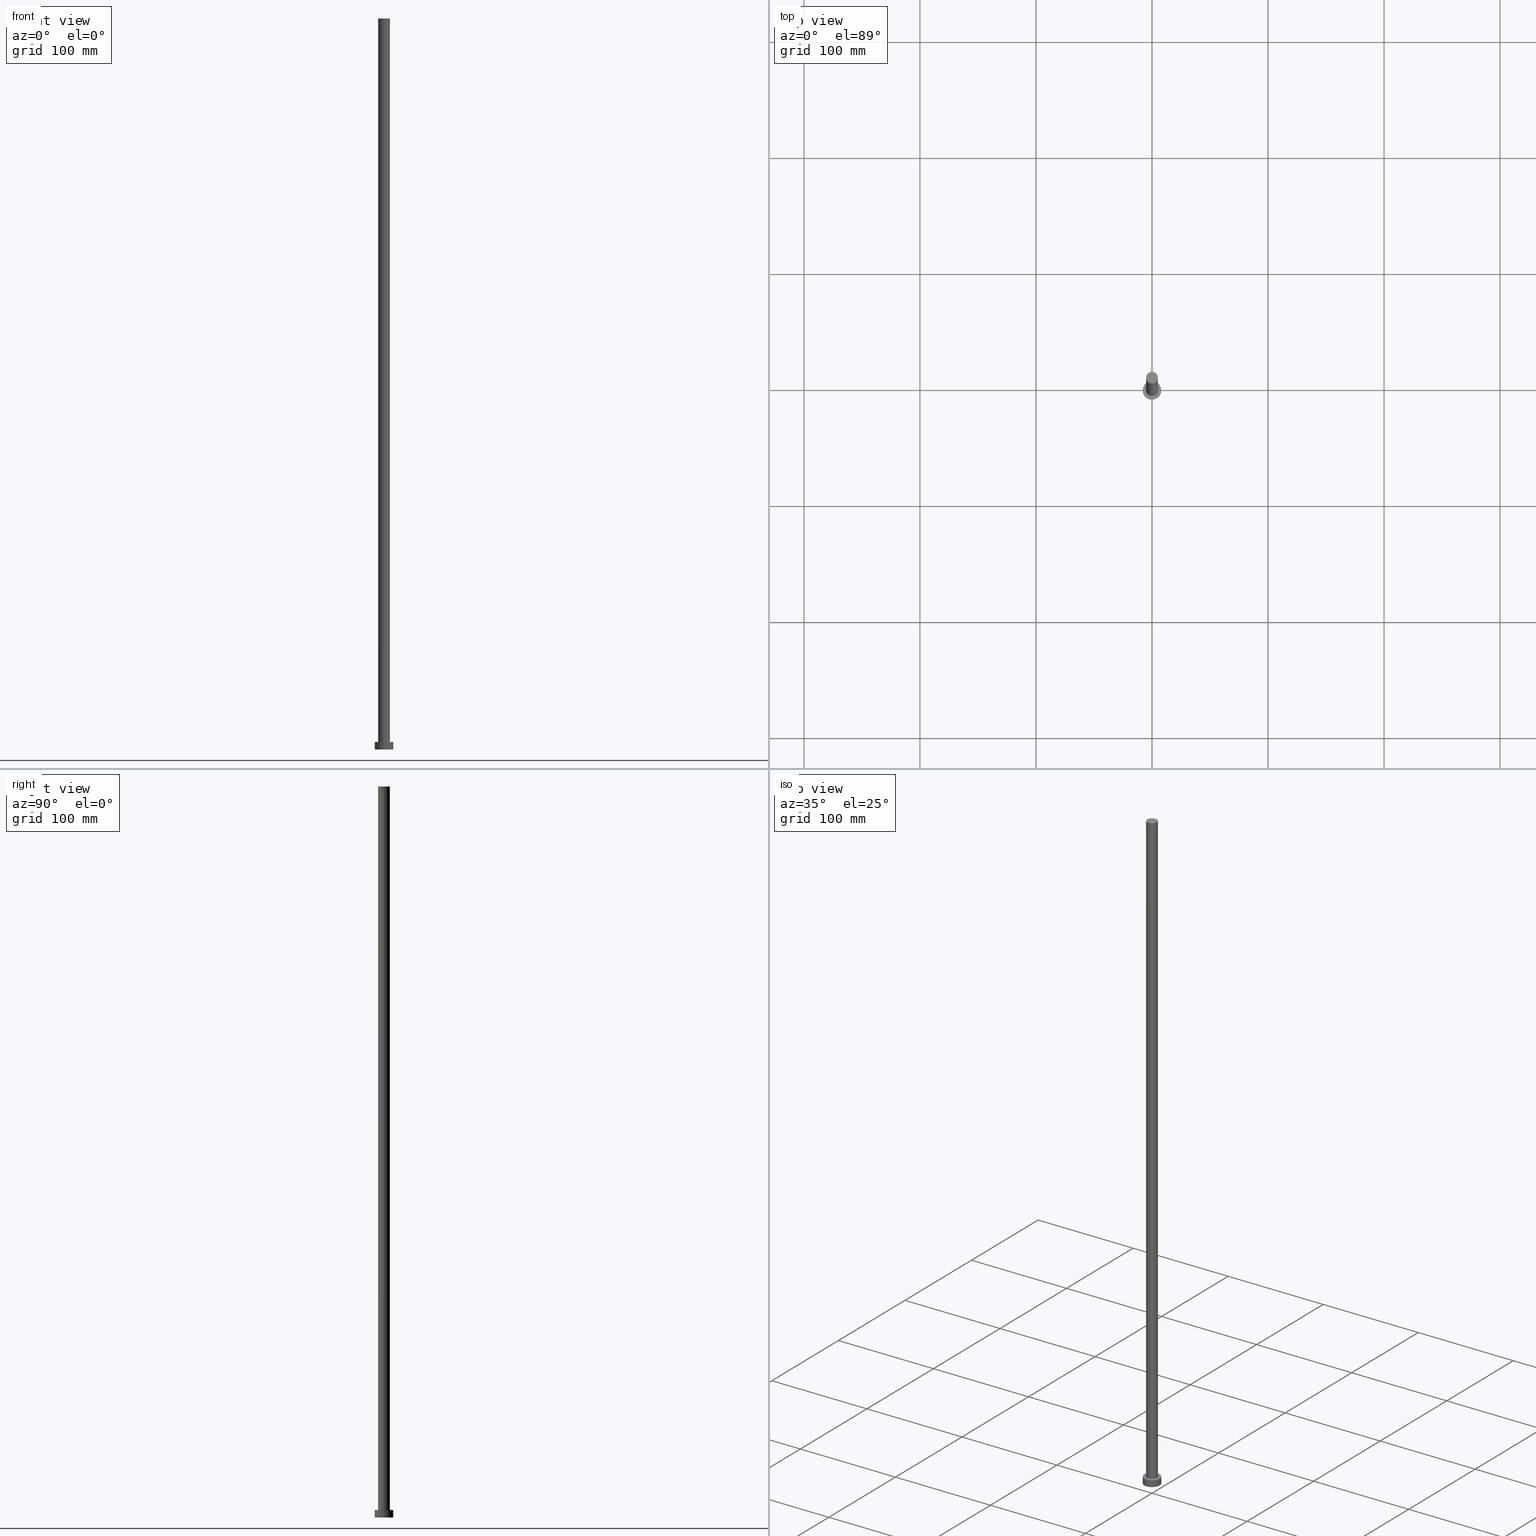
[diagram: canonical four-view strip — front | top / right | iso, engineering-drawing reading convention]
A machine part, canonical four-view strip (front | top / right | iso — engineering-drawing reading convention). The complete STEP part file that produces these views, byte-faithful:
ISO-10303-21;
HEADER;
FILE_DESCRIPTION (( 'STEP AP203' ),
    '1' );
FILE_NAME ('2b42.STEP',
    '2023-02-13T12:23:52',
    ( '' ),
    ( '' ),
    'SwSTEP 2.0',
    'SolidWorks 2019',
    '' );
FILE_SCHEMA (( 'CONFIG_CONTROL_DESIGN' ));
ENDSEC;

DATA;
#1 = AXIS2_PLACEMENT_3D ( 'NONE', #38, #131, #18 ) ;
#2 = CALENDAR_DATE ( 2023, 13, 2 ) ;
#3 = EDGE_CURVE ( 'NONE', #17, #167, #249, .T. ) ;
#4 = PRODUCT ( '2b42', '2b42', '', ( #243 ) ) ;
#5 = COORDINATED_UNIVERSAL_TIME_OFFSET ( 1, 0, .AHEAD. ) ;
#6 = DIRECTION ( 'NONE',  ( -0.000000000000000000, -0.000000000000000000, -1.000000000000000000 ) ) ;
#7 = PERSON_AND_ORGANIZATION ( #98, #213 ) ;
#8 =( NAMED_UNIT ( * ) PLANE_ANGLE_UNIT ( ) SI_UNIT ( $, .RADIAN. ) );
#9 = ORIENTED_EDGE ( 'NONE', *, *, #128, .T. ) ;
#10 = ORIENTED_EDGE ( 'NONE', *, *, #11, .F. ) ;
#11 = EDGE_CURVE ( 'NONE', #54, #133, #122, .T. ) ;
#12 = CARTESIAN_POINT ( 'NONE',  ( 0.000000000000000000, 0.000000000000000000, 630.0000000000000000 ) ) ;
#13 = ADVANCED_FACE ( 'NONE', ( #180 ), #158, .T. ) ;
#14 = AXIS2_PLACEMENT_3D ( 'NONE', #58, #205, #149 ) ;
#15 = PERSON_AND_ORGANIZATION ( #98, #213 ) ;
#16 = APPROVAL ( #39, 'NEUR�EN�' ) ;
#17 = VERTEX_POINT ( 'NONE', #42 ) ;
#18 = DIRECTION ( 'NONE',  ( 1.000000000000000000, 0.000000000000000000, 0.000000000000000000 ) ) ;
#19 = DATE_AND_TIME ( #43, #32 ) ;
#20 = DIRECTION ( 'NONE',  ( 1.000000000000000000, 0.000000000000000000, 0.000000000000000000 ) ) ;
#21 = LINE ( 'NONE', #121, #103 ) ;
#22 = CARTESIAN_POINT ( 'NONE',  ( -8.000000000000000000, 0.000000000000000000, 6.500000000000000000 ) ) ;
#23 = CARTESIAN_POINT ( 'NONE',  ( 0.000000000000000000, 0.000000000000000000, 630.0000000000000000 ) ) ;
#24 = PRODUCT_RELATED_PRODUCT_CATEGORY ( 'detail', '', ( #4 ) ) ;
#25 = APPROVAL_STATUS ( 'not_yet_approved' ) ;
#26 = SHAPE_DEFINITION_REPRESENTATION ( #141, #211 ) ;
#27 = PERSON_AND_ORGANIZATION ( #98, #213 ) ;
#28 = COORDINATED_UNIVERSAL_TIME_OFFSET ( 1, 0, .AHEAD. ) ;
#29 = ORIENTED_EDGE ( 'NONE', *, *, #96, .T. ) ;
#30 = DIRECTION ( 'NONE',  ( 0.000000000000000000, 0.000000000000000000, 1.000000000000000000 ) ) ;
#31 = ORIENTED_EDGE ( 'NONE', *, *, #105, .T. ) ;
#32 = LOCAL_TIME ( 13, 23, 52.00000000000000000, #41 ) ;
#33 = APPROVAL_DATE_TIME ( #177, #94 ) ;
#34 = ORIENTED_EDGE ( 'NONE', *, *, #72, .F. ) ;
#35 = ADVANCED_FACE ( 'NONE', ( #45 ), #221, .F. ) ;
#36 = CIRCLE ( 'NONE', #207, 8.000000000000000000 ) ;
#37 = EDGE_LOOP ( 'NONE', ( #63, #34 ) ) ;
#38 = CARTESIAN_POINT ( 'NONE',  ( 0.000000000000000000, 0.000000000000000000, 0.000000000000000000 ) ) ;
#39 = APPROVAL_STATUS ( 'not_yet_approved' ) ;
#40 = ORIENTED_EDGE ( 'NONE', *, *, #100, .T. ) ;
#41 = COORDINATED_UNIVERSAL_TIME_OFFSET ( 1, 0, .AHEAD. ) ;
#42 = CARTESIAN_POINT ( 'NONE',  ( 5.100000000000001421, 6.245698675651501825E-16, 630.0000000000000000 ) ) ;
#43 = CALENDAR_DATE ( 2023, 13, 2 ) ;
#44 = DIRECTION ( 'NONE',  ( 0.000000000000000000, 0.000000000000000000, 1.000000000000000000 ) ) ;
#45 = FACE_OUTER_BOUND ( 'NONE', #189, .T. ) ;
#46 = PRODUCT_DEFINITION ( 'NEZN�M�', '', #234, #65 ) ;
#47 = FACE_OUTER_BOUND ( 'NONE', #104, .T. ) ;
#48 = AXIS2_PLACEMENT_3D ( 'NONE', #198, #68, #20 ) ;
#49 = PLANE ( 'NONE',  #50 ) ;
#50 = AXIS2_PLACEMENT_3D ( 'NONE', #12, #172, #206 ) ;
#51 = ORIENTED_EDGE ( 'NONE', *, *, #56, .T. ) ;
#52 = CC_DESIGN_PERSON_AND_ORGANIZATION_ASSIGNMENT ( #92, #75, ( #46 ) ) ;
#53 = DIRECTION ( 'NONE',  ( -0.000000000000000000, -0.000000000000000000, -1.000000000000000000 ) ) ;
#54 = VERTEX_POINT ( 'NONE', #117 ) ;
#55 = LOCAL_TIME ( 13, 23, 52.00000000000000000, #240 ) ;
#56 = EDGE_CURVE ( 'NONE', #126, #167, #142, .T. ) ;
#57 = EDGE_LOOP ( 'NONE', ( #90, #152, #40, #231 ) ) ;
#58 = CARTESIAN_POINT ( 'NONE',  ( 0.000000000000000000, 0.000000000000000000, 630.0000000000000000 ) ) ;
#59 = DIRECTION ( 'NONE',  ( -0.000000000000000000, -0.000000000000000000, -1.000000000000000000 ) ) ;
#60 = APPROVAL_STATUS ( 'not_yet_approved' ) ;
#61 = DIRECTION ( 'NONE',  ( 0.000000000000000000, 0.000000000000000000, 1.000000000000000000 ) ) ;
#62 = ADVANCED_FACE ( 'NONE', ( #222 ), #161, .T. ) ;
#63 = ORIENTED_EDGE ( 'NONE', *, *, #56, .F. ) ;
#64 = ORIENTED_EDGE ( 'NONE', *, *, #228, .T. ) ;
#65 = DESIGN_CONTEXT ( 'detailed design', #112, 'design' ) ;
#66 = MANIFOLD_SOLID_BREP ( 'P�idat vysunut�m3', #157 ) ;
#67 = CC_DESIGN_PERSON_AND_ORGANIZATION_ASSIGNMENT ( #127, #79, ( #4 ) ) ;
#68 = DIRECTION ( 'NONE',  ( 0.000000000000000000, 0.000000000000000000, 1.000000000000000000 ) ) ;
#69 = PERSON_AND_ORGANIZATION ( #98, #213 ) ;
#70 = AXIS2_PLACEMENT_3D ( 'NONE', #255, #71, #201 ) ;
#71 = DIRECTION ( 'NONE',  ( 0.000000000000000000, 0.000000000000000000, 1.000000000000000000 ) ) ;
#72 = EDGE_CURVE ( 'NONE', #167, #126, #178, .T. ) ;
#73 = DIRECTION ( 'NONE',  ( 1.000000000000000000, 0.000000000000000000, 0.000000000000000000 ) ) ;
#74 = CARTESIAN_POINT ( 'NONE',  ( 0.000000000000000000, 0.000000000000000000, 6.500000000000000000 ) ) ;
#75 = PERSON_AND_ORGANIZATION_ROLE ( 'creator' ) ;
#76 = FACE_BOUND ( 'NONE', #37, .T. ) ;
#77 = ORIENTED_EDGE ( 'NONE', *, *, #254, .F. ) ;
#78 = EDGE_CURVE ( 'NONE', #156, #133, #120, .T. ) ;
#79 = PERSON_AND_ORGANIZATION_ROLE ( 'design_owner' ) ;
#80 = COORDINATED_UNIVERSAL_TIME_OFFSET ( 1, 0, .AHEAD. ) ;
#81 = AXIS2_PLACEMENT_3D ( 'NONE', #87, #165, #244 ) ;
#82 = CARTESIAN_POINT ( 'NONE',  ( 0.000000000000000000, 0.000000000000000000, 630.0000000000000000 ) ) ;
#83 = CC_DESIGN_APPROVAL ( #16, ( #234 ) ) ;
#84 = CARTESIAN_POINT ( 'NONE',  ( 0.000000000000000000, 0.000000000000000000, 6.500000000000000000 ) ) ;
#85 = DIRECTION ( 'NONE',  ( 1.000000000000000000, 0.000000000000000000, 0.000000000000000000 ) ) ;
#86 = VECTOR ( 'NONE', #53, 1000.000000000000000 ) ;
#87 = CARTESIAN_POINT ( 'NONE',  ( 0.000000000000000000, 0.000000000000000000, 0.000000000000000000 ) ) ;
#88 = EDGE_LOOP ( 'NONE', ( #197, #218, #232, #171 ) ) ;
#89 = APPROVAL_ROLE ( '' ) ;
#90 = ORIENTED_EDGE ( 'NONE', *, *, #105, .F. ) ;
#91 = CARTESIAN_POINT ( 'NONE',  ( 0.000000000000000000, 0.000000000000000000, 630.0000000000000000 ) ) ;
#92 = PERSON_AND_ORGANIZATION ( #98, #213 ) ;
#93 = AXIS2_PLACEMENT_3D ( 'NONE', #82, #61, #216 ) ;
#94 = APPROVAL ( #60, 'NEUR�EN�' ) ;
#95 = CARTESIAN_POINT ( 'NONE',  ( -5.100000000000001421, 0.000000000000000000, 630.0000000000000000 ) ) ;
#96 = EDGE_CURVE ( 'NONE', #214, #126, #21, .T. ) ;
#97 = CARTESIAN_POINT ( 'NONE',  ( 0.000000000000000000, 0.000000000000000000, 0.000000000000000000 ) ) ;
#98 = PERSON ( 'NEUR�EN�', 'NEUR�EN�', 'NEUR�EN�', ('NEUR�EN�'), ('NEUR�EN�'), ('NEUR�EN�') ) ;
#99 = DIRECTION ( 'NONE',  ( -0.000000000000000000, -0.000000000000000000, -1.000000000000000000 ) ) ;
#100 = EDGE_CURVE ( 'NONE', #133, #54, #136, .T. ) ;
#101 = FACE_OUTER_BOUND ( 'NONE', #179, .T. ) ;
#102 = VERTEX_POINT ( 'NONE', #22 ) ;
#103 = VECTOR ( 'NONE', #183, 1000.000000000000000 ) ;
#104 = EDGE_LOOP ( 'NONE', ( #107, #77, #29, #51 ) ) ;
#105 = EDGE_CURVE ( 'NONE', #156, #102, #36, .T. ) ;
#106 = DIRECTION ( 'NONE',  ( 1.000000000000000000, 0.000000000000000000, -0.000000000000000000 ) ) ;
#107 = ORIENTED_EDGE ( 'NONE', *, *, #3, .F. ) ;
#108 = CARTESIAN_POINT ( 'NONE',  ( -5.100000000000001421, 0.000000000000000000, 6.500000000000000000 ) ) ;
#109 = CARTESIAN_POINT ( 'NONE',  ( 0.000000000000000000, 0.000000000000000000, 6.500000000000000000 ) ) ;
#110 = ORIENTED_EDGE ( 'NONE', *, *, #215, .T. ) ;
#111 = AXIS2_PLACEMENT_3D ( 'NONE', #209, #30, #106 ) ;
#112 = APPLICATION_CONTEXT ( 'configuration controlled 3d designs of mechanical parts and assemblies' ) ;
#113 = SECURITY_CLASSIFICATION_LEVEL ( 'unclassified' ) ;
#114 = LOCAL_TIME ( 13, 23, 52.00000000000000000, #80 ) ;
#115 = CARTESIAN_POINT ( 'NONE',  ( 0.000000000000000000, 0.000000000000000000, 6.500000000000000000 ) ) ;
#116 = AXIS2_PLACEMENT_3D ( 'NONE', #250, #59, #217 ) ;
#117 = CARTESIAN_POINT ( 'NONE',  ( -8.000000000000000000, 0.000000000000000000, 0.000000000000000000 ) ) ;
#118 = CALENDAR_DATE ( 2023, 13, 2 ) ;
#119 = ADVANCED_FACE ( 'NONE', ( #47 ), #202, .T. ) ;
#120 = LINE ( 'NONE', #200, #220 ) ;
#121 = CARTESIAN_POINT ( 'NONE',  ( -5.100000000000001421, 0.000000000000000000, 630.0000000000000000 ) ) ;
#122 = CIRCLE ( 'NONE', #1, 8.000000000000000000 ) ;
#123 = CARTESIAN_POINT ( 'NONE',  ( -8.000000000000000000, 0.000000000000000000, 6.500000000000000000 ) ) ;
#124 = CARTESIAN_POINT ( 'NONE',  ( 8.000000000000000000, 9.797174393178823685E-16, 6.500000000000000000 ) ) ;
#125 = AXIS2_PLACEMENT_3D ( 'NONE', #23, #99, #166 ) ;
#126 = VERTEX_POINT ( 'NONE', #108 ) ;
#127 = PERSON_AND_ORGANIZATION ( #98, #213 ) ;
#128 = EDGE_CURVE ( 'NONE', #102, #54, #168, .T. ) ;
#129 = CALENDAR_DATE ( 2023, 13, 2 ) ;
#130 = CC_DESIGN_APPROVAL ( #169, ( #227 ) ) ;
#131 = DIRECTION ( 'NONE',  ( 0.000000000000000000, 0.000000000000000000, 1.000000000000000000 ) ) ;
#132 = AXIS2_PLACEMENT_3D ( 'NONE', #115, #181, #85 ) ;
#133 = VERTEX_POINT ( 'NONE', #226 ) ;
#134 = CC_DESIGN_APPROVAL ( #94, ( #46 ) ) ;
#135 = PERSON_AND_ORGANIZATION ( #98, #213 ) ;
#136 = CIRCLE ( 'NONE', #70, 8.000000000000000000 ) ;
#137 = DIRECTION ( 'NONE',  ( 1.000000000000000000, 0.000000000000000000, -0.000000000000000000 ) ) ;
#138 = UNCERTAINTY_MEASURE_WITH_UNIT (LENGTH_MEASURE( 1.000000000000000082E-05 ), #144, 'distance_accuracy_value', 'NONE');
#139 = APPROVAL_DATE_TIME ( #182, #169 ) ;
#140 = AXIS2_PLACEMENT_3D ( 'NONE', #91, #248, #151 ) ;
#141 = PRODUCT_DEFINITION_SHAPE ( 'NONE', 'NONE',  #46 ) ;
#142 = CIRCLE ( 'NONE', #132, 5.100000000000001421 ) ;
#143 = APPLICATION_PROTOCOL_DEFINITION ( 'international standard', 'config_control_design', 1994, #163 ) ;
#144 =( LENGTH_UNIT ( ) NAMED_UNIT ( * ) SI_UNIT ( .MILLI., .METRE. ) );
#145 = PLANE ( 'NONE',  #111 ) ;
#146 = ADVANCED_FACE ( 'NONE', ( #101 ), #49, .T. ) ;
#147 = AXIS2_PLACEMENT_3D ( 'NONE', #97, #44, #137 ) ;
#148 = ORIENTED_EDGE ( 'NONE', *, *, #78, .F. ) ;
#149 = DIRECTION ( 'NONE',  ( 1.000000000000000000, 0.000000000000000000, 0.000000000000000000 ) ) ;
#150 = AXIS2_PLACEMENT_3D ( 'NONE', #109, #155, #176 ) ;
#151 = DIRECTION ( 'NONE',  ( -1.000000000000000000, 0.000000000000000000, 0.000000000000000000 ) ) ;
#152 = ORIENTED_EDGE ( 'NONE', *, *, #78, .T. ) ;
#153 = DIRECTION ( 'NONE',  ( -0.000000000000000000, -0.000000000000000000, -1.000000000000000000 ) ) ;
#154 = PERSON_AND_ORGANIZATION_ROLE ( 'creator' ) ;
#155 = DIRECTION ( 'NONE',  ( 0.000000000000000000, 0.000000000000000000, 1.000000000000000000 ) ) ;
#156 = VERTEX_POINT ( 'NONE', #124 ) ;
#157 = CLOSED_SHELL ( 'NONE', ( #242, #13, #62, #160, #35, #119, #146 ) ) ;
#158 = CYLINDRICAL_SURFACE ( 'NONE', #116, 8.000000000000000000 ) ;
#159 = APPROVAL_DATE_TIME ( #19, #16 ) ;
#160 = ADVANCED_FACE ( 'NONE', ( #76, #245 ), #145, .T. ) ;
#161 = CYLINDRICAL_SURFACE ( 'NONE', #225, 8.000000000000000000 ) ;
#162 = PERSON_AND_ORGANIZATION_ROLE ( 'classification_officer' ) ;
#163 = APPLICATION_CONTEXT ( 'configuration controlled 3d designs of mechanical parts and assemblies' ) ;
#164 = APPROVAL_PERSON_ORGANIZATION ( #15, #94, #89 ) ;
#165 = DIRECTION ( 'NONE',  ( 0.000000000000000000, 0.000000000000000000, 1.000000000000000000 ) ) ;
#166 = DIRECTION ( 'NONE',  ( -1.000000000000000000, 0.000000000000000000, 0.000000000000000000 ) ) ;
#167 = VERTEX_POINT ( 'NONE', #190 ) ;
#168 = LINE ( 'NONE', #123, #86 ) ;
#169 = APPROVAL ( #25, 'NEUR�EN�' ) ;
#170 = CIRCLE ( 'NONE', #14, 5.100000000000001421 ) ;
#171 = ORIENTED_EDGE ( 'NONE', *, *, #96, .F. ) ;
#172 = DIRECTION ( 'NONE',  ( 0.000000000000000000, 0.000000000000000000, 1.000000000000000000 ) ) ;
#173 = ORIENTED_EDGE ( 'NONE', *, *, #100, .F. ) ;
#174 = CC_DESIGN_SECURITY_CLASSIFICATION ( #227, ( #234 ) ) ;
#175 = DATE_TIME_ROLE ( 'creation_date' ) ;
#176 = DIRECTION ( 'NONE',  ( 1.000000000000000000, 0.000000000000000000, 0.000000000000000000 ) ) ;
#177 = DATE_AND_TIME ( #229, #253 ) ;
#178 = CIRCLE ( 'NONE', #48, 5.100000000000001421 ) ;
#179 = EDGE_LOOP ( 'NONE', ( #210, #110 ) ) ;
#180 = FACE_OUTER_BOUND ( 'NONE', #57, .T. ) ;
#181 = DIRECTION ( 'NONE',  ( 0.000000000000000000, 0.000000000000000000, 1.000000000000000000 ) ) ;
#182 = DATE_AND_TIME ( #2, #230 ) ;
#183 = DIRECTION ( 'NONE',  ( -0.000000000000000000, -0.000000000000000000, -1.000000000000000000 ) ) ;
#184 = CC_DESIGN_PERSON_AND_ORGANIZATION_ASSIGNMENT ( #69, #154, ( #234 ) ) ;
#185 = VECTOR ( 'NONE', #153, 1000.000000000000000 ) ;
#186 = APPROVAL_ROLE ( '' ) ;
#187 = ORIENTED_EDGE ( 'NONE', *, *, #11, .T. ) ;
#188 = CC_DESIGN_PERSON_AND_ORGANIZATION_ASSIGNMENT ( #135, #219, ( #234 ) ) ;
#189 = EDGE_LOOP ( 'NONE', ( #10, #173 ) ) ;
#190 = CARTESIAN_POINT ( 'NONE',  ( 5.100000000000001421, 6.245698675651501825E-16, 6.500000000000000000 ) ) ;
#191 = CIRCLE ( 'NONE', #93, 5.100000000000001421 ) ;
#192 = EDGE_LOOP ( 'NONE', ( #148, #235, #9, #187 ) ) ;
#193 = DATE_AND_TIME ( #129, #114 ) ;
#194 =( GEOMETRIC_REPRESENTATION_CONTEXT ( 3 ) GLOBAL_UNCERTAINTY_ASSIGNED_CONTEXT ( ( #138 ) ) GLOBAL_UNIT_ASSIGNED_CONTEXT ( ( #144, #8, #208 ) ) REPRESENTATION_CONTEXT ( 'NONE', 'WORKASPACE' ) );
#195 = APPROVAL_PERSON_ORGANIZATION ( #7, #169, #241 ) ;
#196 = FACE_OUTER_BOUND ( 'NONE', #88, .T. ) ;
#197 = ORIENTED_EDGE ( 'NONE', *, *, #215, .F. ) ;
#198 = CARTESIAN_POINT ( 'NONE',  ( 0.000000000000000000, 0.000000000000000000, 6.500000000000000000 ) ) ;
#199 = PERSON_AND_ORGANIZATION ( #98, #213 ) ;
#200 = CARTESIAN_POINT ( 'NONE',  ( 8.000000000000000000, 9.797174393178823685E-16, 6.500000000000000000 ) ) ;
#201 = DIRECTION ( 'NONE',  ( 1.000000000000000000, 0.000000000000000000, 0.000000000000000000 ) ) ;
#202 = CYLINDRICAL_SURFACE ( 'NONE', #125, 5.100000000000001421 ) ;
#203 = DATE_AND_TIME ( #118, #55 ) ;
#204 = APPLICATION_PROTOCOL_DEFINITION ( 'international standard', 'config_control_design', 1994, #112 ) ;
#205 = DIRECTION ( 'NONE',  ( 0.000000000000000000, 0.000000000000000000, 1.000000000000000000 ) ) ;
#206 = DIRECTION ( 'NONE',  ( 1.000000000000000000, 0.000000000000000000, -0.000000000000000000 ) ) ;
#207 = AXIS2_PLACEMENT_3D ( 'NONE', #84, #239, #73 ) ;
#208 =( NAMED_UNIT ( * ) SI_UNIT ( $, .STERADIAN. ) SOLID_ANGLE_UNIT ( ) );
#209 = CARTESIAN_POINT ( 'NONE',  ( 0.000000000000000000, 0.000000000000000000, 6.500000000000000000 ) ) ;
#210 = ORIENTED_EDGE ( 'NONE', *, *, #254, .T. ) ;
#211 = ADVANCED_BREP_SHAPE_REPRESENTATION ( '2b42', ( #66, #81 ), #194 ) ;
#212 = CC_DESIGN_DATE_AND_TIME_ASSIGNMENT ( #193, #175, ( #46 ) ) ;
#213 = ORGANIZATION ( 'NEUR�EN�', 'NEUR�EN�', '' ) ;
#214 = VERTEX_POINT ( 'NONE', #95 ) ;
#215 = EDGE_CURVE ( 'NONE', #17, #214, #191, .T. ) ;
#216 = DIRECTION ( 'NONE',  ( 1.000000000000000000, 0.000000000000000000, 0.000000000000000000 ) ) ;
#217 = DIRECTION ( 'NONE',  ( -1.000000000000000000, 0.000000000000000000, 0.000000000000000000 ) ) ;
#218 = ORIENTED_EDGE ( 'NONE', *, *, #3, .T. ) ;
#219 = PERSON_AND_ORGANIZATION_ROLE ( 'design_supplier' ) ;
#220 = VECTOR ( 'NONE', #238, 1000.000000000000000 ) ;
#221 = PLANE ( 'NONE',  #147 ) ;
#222 = FACE_OUTER_BOUND ( 'NONE', #192, .T. ) ;
#223 = APPROVAL_PERSON_ORGANIZATION ( #27, #16, #186 ) ;
#224 = DATE_TIME_ROLE ( 'classification_date' ) ;
#225 = AXIS2_PLACEMENT_3D ( 'NONE', #74, #6, #237 ) ;
#226 = CARTESIAN_POINT ( 'NONE',  ( 8.000000000000000000, 9.797174393178823685E-16, 0.000000000000000000 ) ) ;
#227 = SECURITY_CLASSIFICATION ( '', '', #113 ) ;
#228 = EDGE_CURVE ( 'NONE', #102, #156, #247, .T. ) ;
#229 = CALENDAR_DATE ( 2023, 13, 2 ) ;
#230 = LOCAL_TIME ( 13, 23, 52.00000000000000000, #28 ) ;
#231 = ORIENTED_EDGE ( 'NONE', *, *, #128, .F. ) ;
#232 = ORIENTED_EDGE ( 'NONE', *, *, #72, .T. ) ;
#233 = CC_DESIGN_DATE_AND_TIME_ASSIGNMENT ( #203, #224, ( #227 ) ) ;
#234 = PRODUCT_DEFINITION_FORMATION_WITH_SPECIFIED_SOURCE ( 'LIBOVOLN�', '', #4, .NOT_KNOWN. ) ;
#235 = ORIENTED_EDGE ( 'NONE', *, *, #228, .F. ) ;
#236 = CYLINDRICAL_SURFACE ( 'NONE', #140, 5.100000000000001421 ) ;
#237 = DIRECTION ( 'NONE',  ( -1.000000000000000000, 0.000000000000000000, 0.000000000000000000 ) ) ;
#238 = DIRECTION ( 'NONE',  ( -0.000000000000000000, -0.000000000000000000, -1.000000000000000000 ) ) ;
#239 = DIRECTION ( 'NONE',  ( 0.000000000000000000, 0.000000000000000000, 1.000000000000000000 ) ) ;
#240 = COORDINATED_UNIVERSAL_TIME_OFFSET ( 1, 0, .AHEAD. ) ;
#241 = APPROVAL_ROLE ( '' ) ;
#242 = ADVANCED_FACE ( 'NONE', ( #196 ), #236, .T. ) ;
#243 = MECHANICAL_CONTEXT ( 'NONE', #163, 'mechanical' ) ;
#244 = DIRECTION ( 'NONE',  ( 1.000000000000000000, 0.000000000000000000, 0.000000000000000000 ) ) ;
#245 = FACE_OUTER_BOUND ( 'NONE', #246, .T. ) ;
#246 = EDGE_LOOP ( 'NONE', ( #64, #31 ) ) ;
#247 = CIRCLE ( 'NONE', #150, 8.000000000000000000 ) ;
#248 = DIRECTION ( 'NONE',  ( -0.000000000000000000, -0.000000000000000000, -1.000000000000000000 ) ) ;
#249 = LINE ( 'NONE', #252, #185 ) ;
#250 = CARTESIAN_POINT ( 'NONE',  ( 0.000000000000000000, 0.000000000000000000, 6.500000000000000000 ) ) ;
#251 = CC_DESIGN_PERSON_AND_ORGANIZATION_ASSIGNMENT ( #199, #162, ( #227 ) ) ;
#252 = CARTESIAN_POINT ( 'NONE',  ( 5.100000000000001421, 6.245698675651501825E-16, 630.0000000000000000 ) ) ;
#253 = LOCAL_TIME ( 13, 23, 52.00000000000000000, #5 ) ;
#254 = EDGE_CURVE ( 'NONE', #214, #17, #170, .T. ) ;
#255 = CARTESIAN_POINT ( 'NONE',  ( 0.000000000000000000, 0.000000000000000000, 0.000000000000000000 ) ) ;
ENDSEC;
END-ISO-10303-21;
